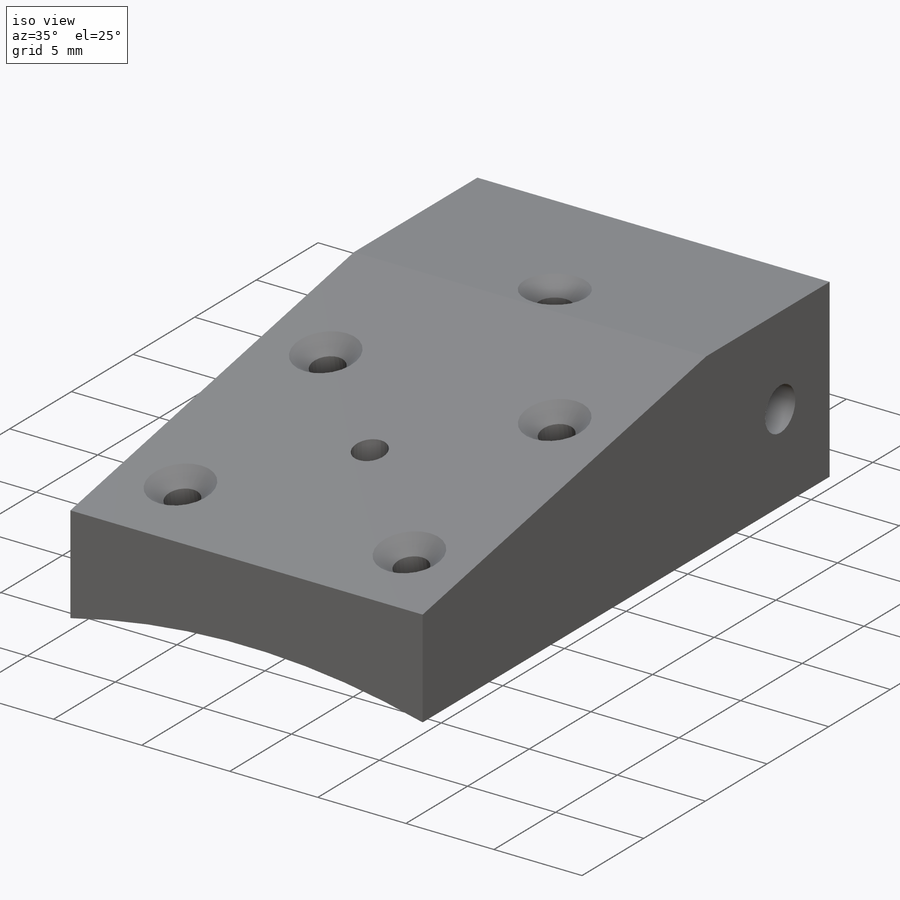
[diagram: iso view]
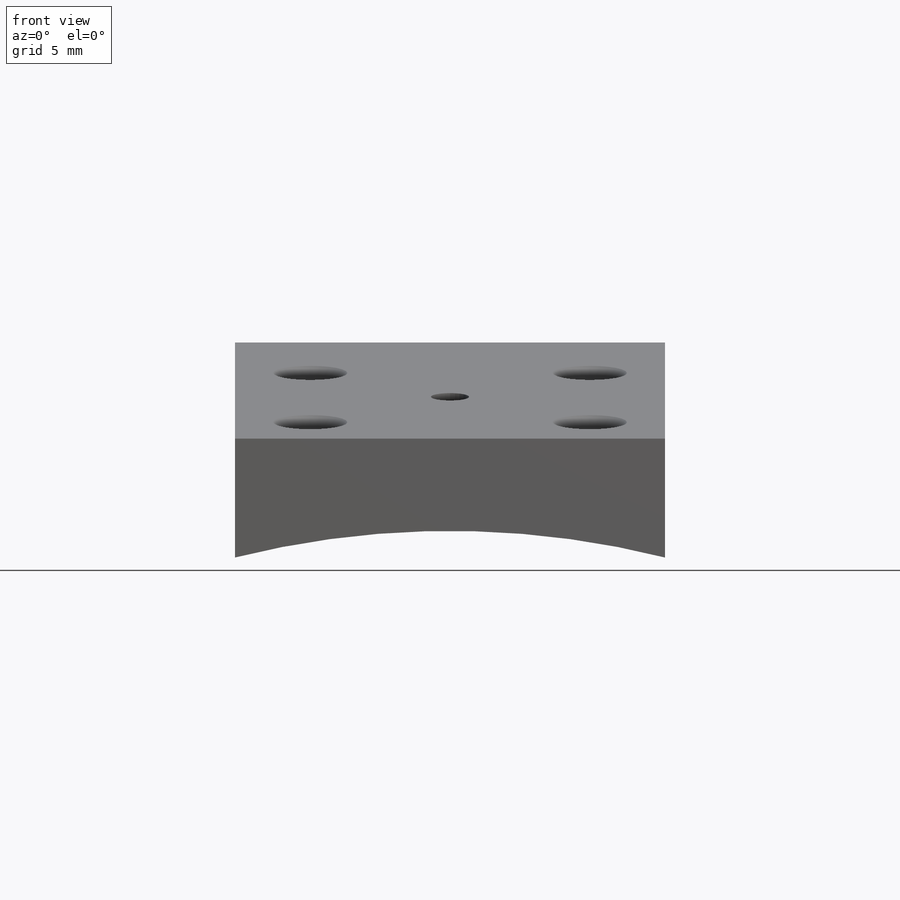
[diagram: front view]
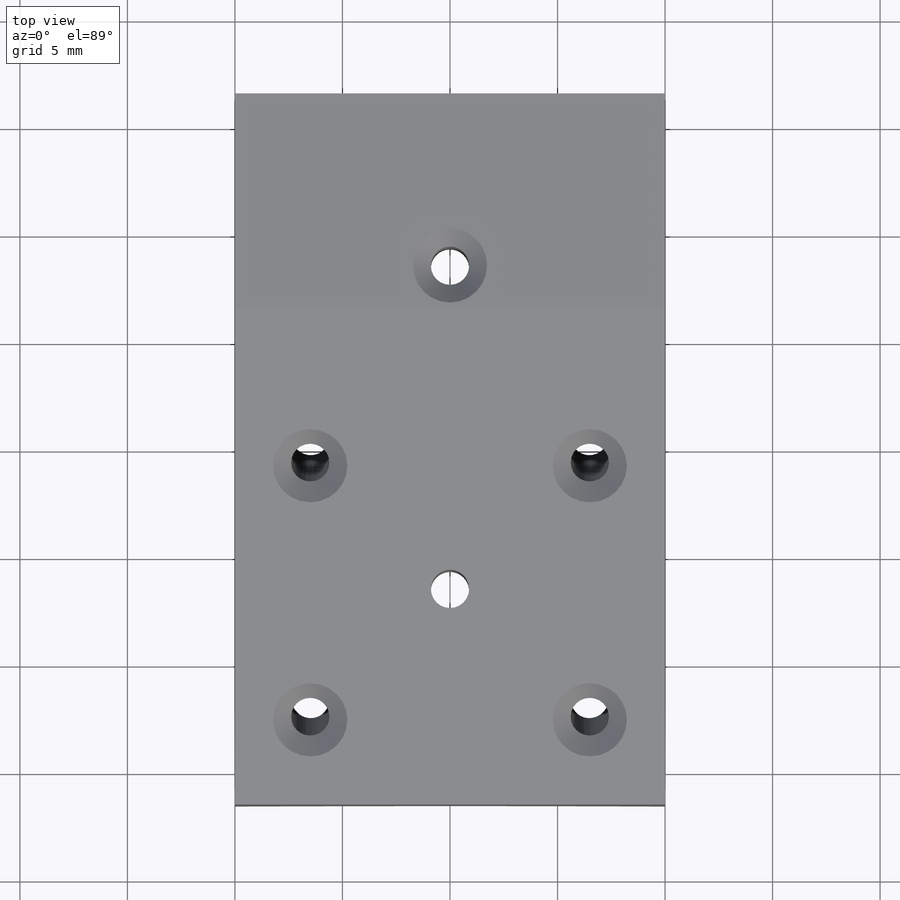
[diagram: top view]
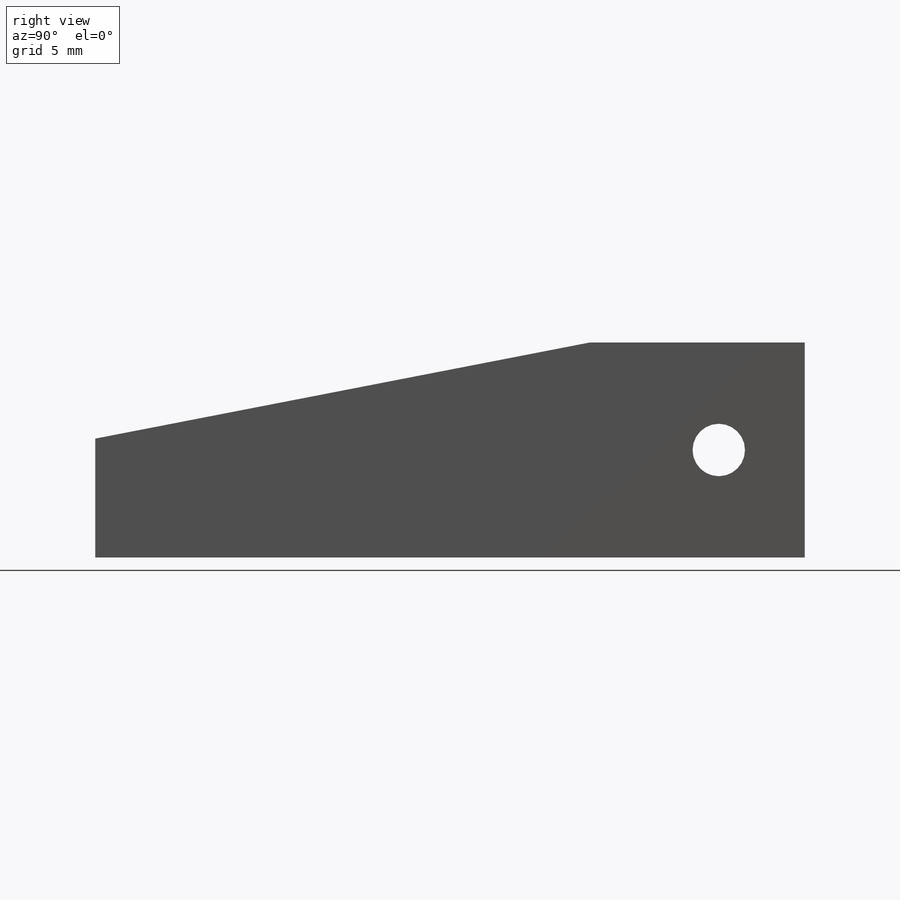
[diagram: right view]
SOLIDWORKS PART (.sldprt)
format: sldprt  version: not decoded by parser v0  size: 390,144 bytes
history: native  units: mm
features: sketch x11, thread x6, hole x4, extrude x2, material x1, cut_extrude x1 (+11 scaffold rows collapsed)
feature tree (36):
  scaffold x11  (default folders/planes/origin — collapsed)
  material  "6061-T6 (SS)"
  sketch  "Sketch1"  dims[D1=41.016mm D2=20.0mm D3=10.0mm]
  extrude  "Boss-Extrude1"  Depth=23mm
  hole  "#2-56 Tapped Hole3"  Diameter=1.778mm Depth=11.237711mm
  sketch  "Sketch9"  dims[D1=10.0mm]
  sketch  "Sketch8"  dims[hole-wizard template sketch: 54 standard entries collapsed; hole parameters kept: c17.Thru Tap Drill Dia.=1.778mm c17.Thru Tap Drill Depth=~11.237711mm c17.Near C'Sink Dia.=3.4544mm c17.D4=~3.666174mm c17.Near C'Sink Angle=90.0deg]
  thread  "Hole Thread5"  Diameter=2.1844mm  [1 undecoded]
  sketch  "Sketch2"  dims[c1.D1=30.0mm c2.D1=11.0deg c2.D2=10.0mm]
  cut_extrude  "Cut-Extrude1"  Depth=20mm
  hole  "#2-56 Tapped Hole1"  [1 undecoded]
  sketch  "Sketch4"  dims[D1=4.0mm D2=12.0mm D3=6.5mm]
  thread  "Hole Thread1"  Diameter=2.1844mm  [1 undecoded]
  thread  "Hole Thread2"  Diameter=2.1844mm  [1 undecoded]
  sketch  "Sketch3"  dims[hole-wizard template sketch: 54 standard entries collapsed; hole parameters kept: c17.Thru Tap Drill Dia.=1.778mm c17.Thru Tap Drill Depth=~9.816272mm c17.Near C'Sink Dia.=3.4544mm c17.D4=~3.666174mm c17.Near C'Sink Angle=90.0deg]
  thread  "Hole Thread3"  Diameter=2.1844mm  [1 undecoded]
  thread  "Hole Thread4"  Diameter=2.1844mm  [1 undecoded]
  sketch  "Sketch5"  dims[D1=0.0mm]
  extrude  "Boss-Extrude2"  Depth=10mm
  hole  "#2-56 Tapped Hole4"  Diameter=1.778mm Depth=10mm
  sketch  "Sketch11"  dims[D1=15.0mm]
  sketch  "Sketch10"  dims[hole-wizard template sketch: 54 standard entries collapsed; hole parameters kept: c17.Thru Tap Drill Dia.=1.778mm c17.Thru Tap Drill Depth=10.0mm c17.Near C'Sink Dia.=3.4544mm c17.D4=~3.666174mm c17.Near C'Sink Angle=90.0deg]
  thread  "Hole Thread6"  Diameter=2.1844mm  [1 undecoded]
  hole  "#2 Clearance Hole1"  Diameter=2.4384mm Depth=20mm
  sketch  "Sketch13"  dims[c1.D1=20.0mm c1.D2=12.0mm c2.D1=29.0mm]
  sketch  "Sketch12"  dims[hole-wizard template sketch: 60 standard entries collapsed; hole parameters kept: c18.Thru Hole Depth=20.0mm]
decode coverage: 23 of 24 modeling features carry decoded parameters
note: ~ marks probable driven/reference dimensions
note: 7 parameter values undecoded
note: suppression state not decoded; provenance and decode notes live in map.json
